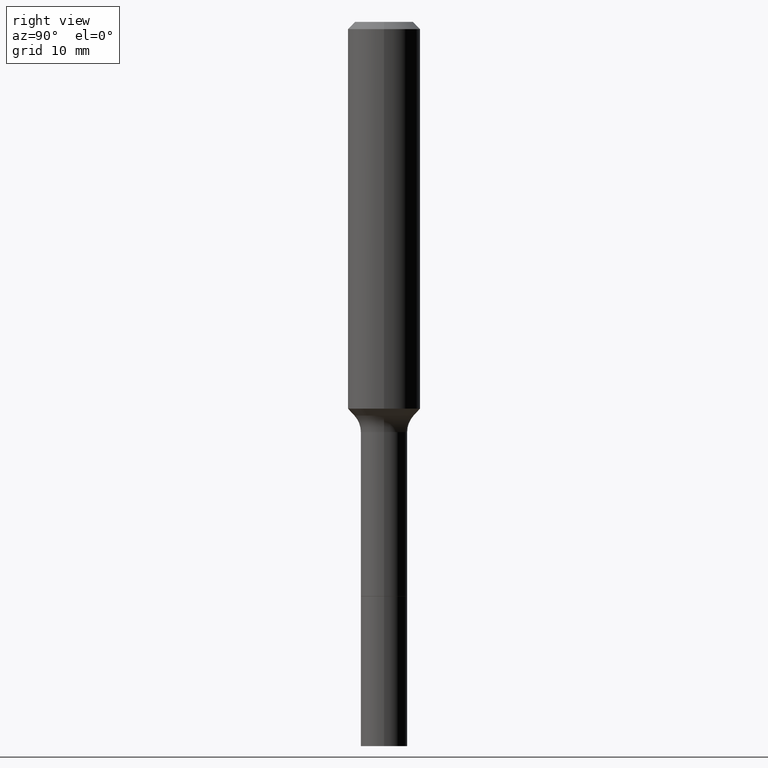
[diagram: clean part render]
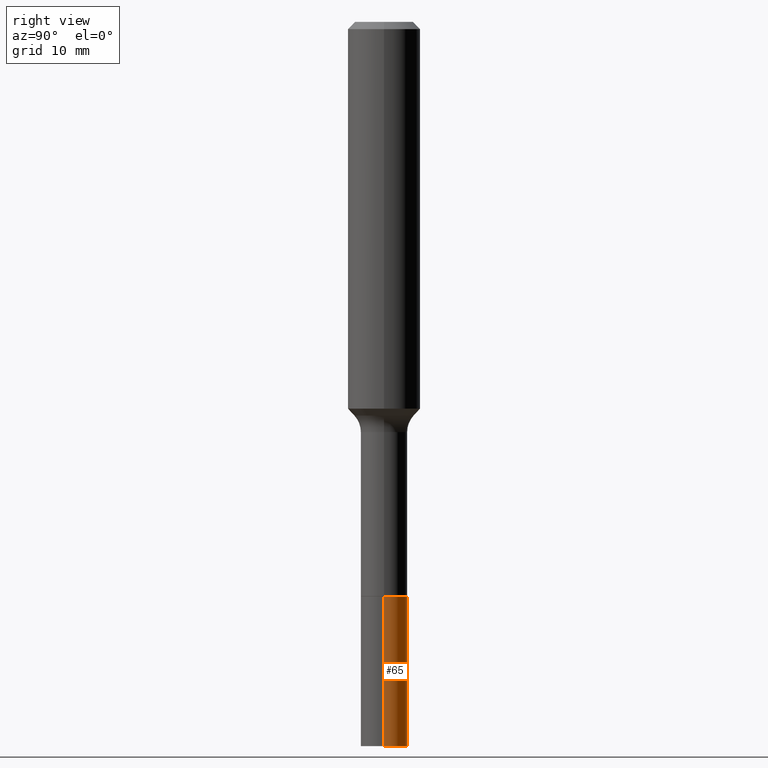
[diagram: same view with one face highlighted and labeled with its STEP entity id]
A machine part, right view. The second image highlights one B-rep face of the part: STEP entity #65.
In plain terms, the highlighted cylindrical surface (edge-blend (fillet) strip) has radius 1.9304 mm, axis along (-0, 0, 1).
Its self-contained STEP definition (entity closure, byte-faithful):
#12 = DIRECTION ( 'NONE',  ( 1.000000000000000000, -6.982962677686267499E-15, 0.000000000000000000 ) ) ;
#30 = ORIENTED_EDGE ( 'NONE', *, *, #403, .F. ) ;
#34 = VERTEX_POINT ( 'NONE', #463 ) ;
#39 = FACE_OUTER_BOUND ( 'NONE', #337, .T. ) ;
#40 = CYLINDRICAL_SURFACE ( 'NONE', #60, 0.07600000000000006750 ) ;
#42 = CARTESIAN_POINT ( 'NONE',  ( -0.07600000000000016465, -6.855643292759872188E-15, -2.362200000000000077 ) ) ;
#56 = DIRECTION ( 'NONE',  ( 1.000000000000000000, -6.982962677686267499E-15, 0.000000000000000000 ) ) ;
#60 = AXIS2_PLACEMENT_3D ( 'NONE', #513, #360, #156 ) ;
#65 = ADVANCED_FACE ( 'NONE', ( #39 ), #40, .T. ) ;
#84 = AXIS2_PLACEMENT_3D ( 'NONE', #415, #445, #56 ) ;
#94 = EDGE_CURVE ( 'NONE', #168, #34, #121, .T. ) ;
#100 = LINE ( 'NONE', #465, #326 ) ;
#121 = LINE ( 'NONE', #438, #275 ) ;
#137 = CARTESIAN_POINT ( 'NONE',  ( 0.07600000000000015077, -8.778282382119435644E-15, -2.362200000000000077 ) ) ;
#139 = CIRCLE ( 'NONE', #84, 0.07600000000000001199 ) ;
#156 = DIRECTION ( 'NONE',  ( 1.000000000000000000, -6.982962677686262766E-15, 0.000000000000000000 ) ) ;
#163 = CARTESIAN_POINT ( 'NONE',  ( 0.07600000000000001199, -7.074439488763979530E-15, -1.874199999999999866 ) ) ;
#168 = VERTEX_POINT ( 'NONE', #42 ) ;
#169 = DIRECTION ( 'NONE',  ( -2.445468806185136597E-29, 3.491481338843145583E-15, 1.000000000000000000 ) ) ;
#209 = CARTESIAN_POINT ( 'NONE',  ( 5.776686413970529753E-29, -8.247577218615279626E-15, -2.362200000000000077 ) ) ;
#273 = VERTEX_POINT ( 'NONE', #163 ) ;
#275 = VECTOR ( 'NONE', #475, 39.37007874015748143 ) ;
#283 = EDGE_CURVE ( 'NONE', #273, #34, #139, .T. ) ;
#286 = ORIENTED_EDGE ( 'NONE', *, *, #283, .F. ) ;
#318 = CIRCLE ( 'NONE', #471, 0.07600000000000015077 ) ;
#322 = EDGE_CURVE ( 'NONE', #434, #168, #318, .T. ) ;
#326 = VECTOR ( 'NONE', #499, 39.37007874015748143 ) ;
#337 = EDGE_LOOP ( 'NONE', ( #409, #364, #286, #30 ) ) ;
#360 = DIRECTION ( 'NONE',  ( -2.445468806185136597E-29, 3.491481338843145583E-15, 1.000000000000000000 ) ) ;
#364 = ORIENTED_EDGE ( 'NONE', *, *, #94, .T. ) ;
#403 = EDGE_CURVE ( 'NONE', #434, #273, #100, .T. ) ;
#409 = ORIENTED_EDGE ( 'NONE', *, *, #322, .T. ) ;
#415 = CARTESIAN_POINT ( 'NONE',  ( 4.583297636552182524E-29, -6.543734325259823512E-15, -1.874199999999999866 ) ) ;
#434 = VERTEX_POINT ( 'NONE', #137 ) ;
#438 = CARTESIAN_POINT ( 'NONE',  ( -0.07600000000000006750, -6.003721846082146892E-15, -1.874199999999999866 ) ) ;
#445 = DIRECTION ( 'NONE',  ( -2.445468806185136597E-29, 3.491481338843145583E-15, 1.000000000000000000 ) ) ;
#463 = CARTESIAN_POINT ( 'NONE',  ( -0.07600000000000001199, -6.855643292759874554E-15, -1.874199999999999866 ) ) ;
#465 = CARTESIAN_POINT ( 'NONE',  ( 0.07600000000000006750, -7.074439488763979530E-15, -1.874199999999999866 ) ) ;
#471 = AXIS2_PLACEMENT_3D ( 'NONE', #209, #169, #12 ) ;
#475 = DIRECTION ( 'NONE',  ( -2.445468806185136877E-29, 3.491481338843145188E-15, 1.000000000000000000 ) ) ;
#499 = DIRECTION ( 'NONE',  ( -2.445468806185136877E-29, 3.491481338843145188E-15, 1.000000000000000000 ) ) ;
#513 = CARTESIAN_POINT ( 'NONE',  ( 4.583297636552182524E-29, -6.543734325259823512E-15, -1.874199999999999866 ) ) ;